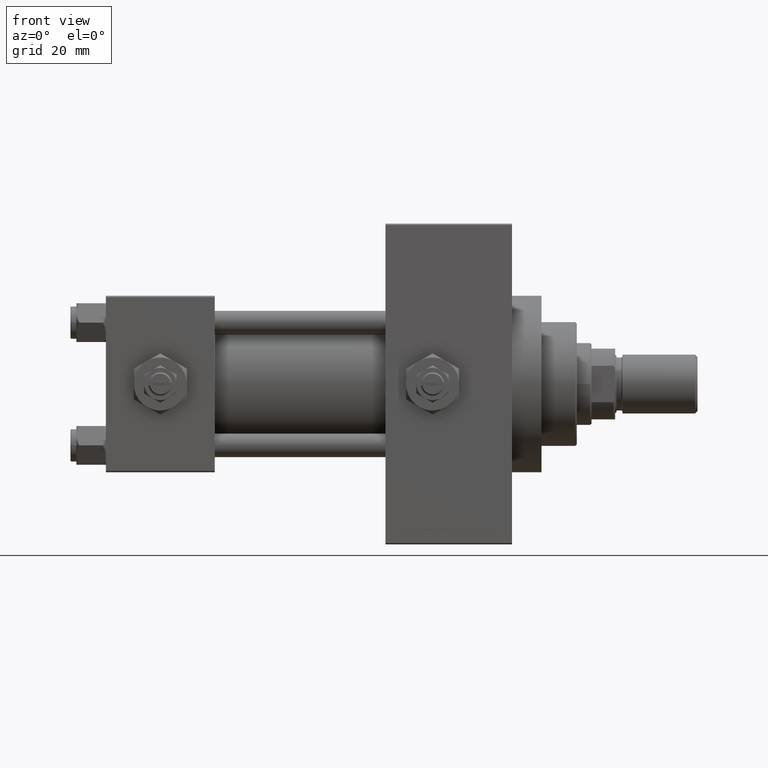
[diagram: clean part render]
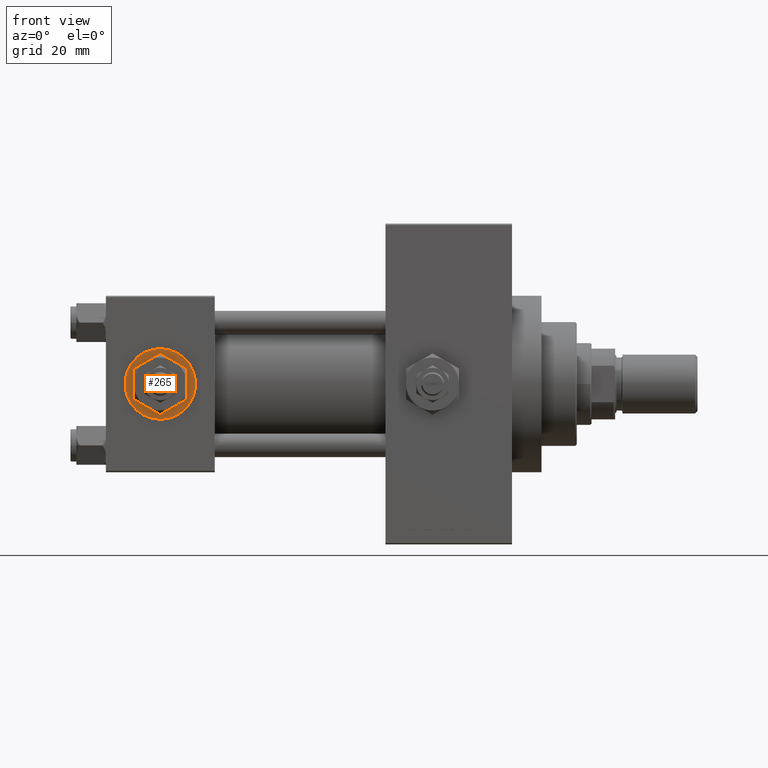
[diagram: same view with one face highlighted and labeled with its STEP entity id]
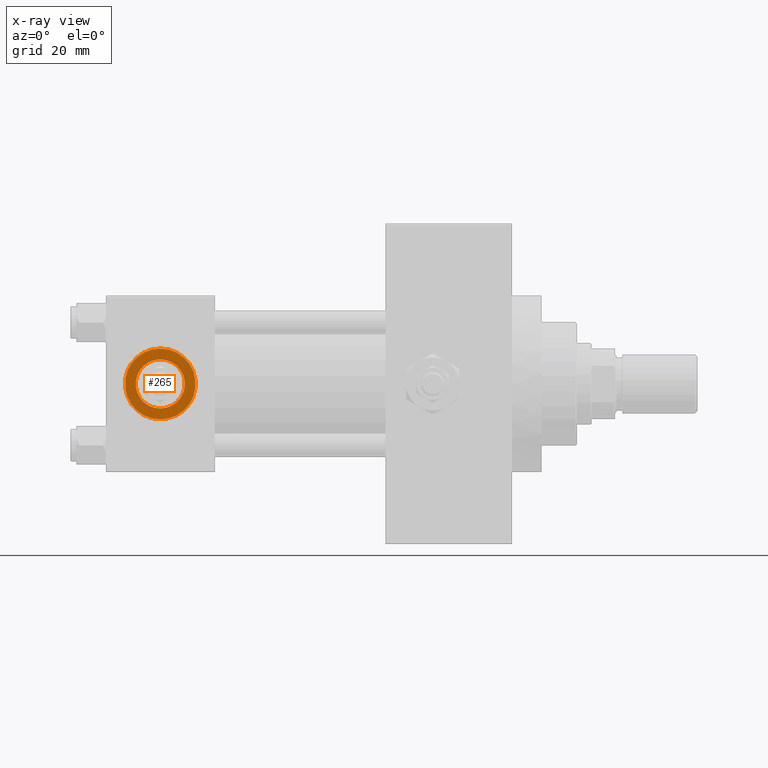
[diagram: x-ray of the same camera — body ghosted, the highlighted face saturated]
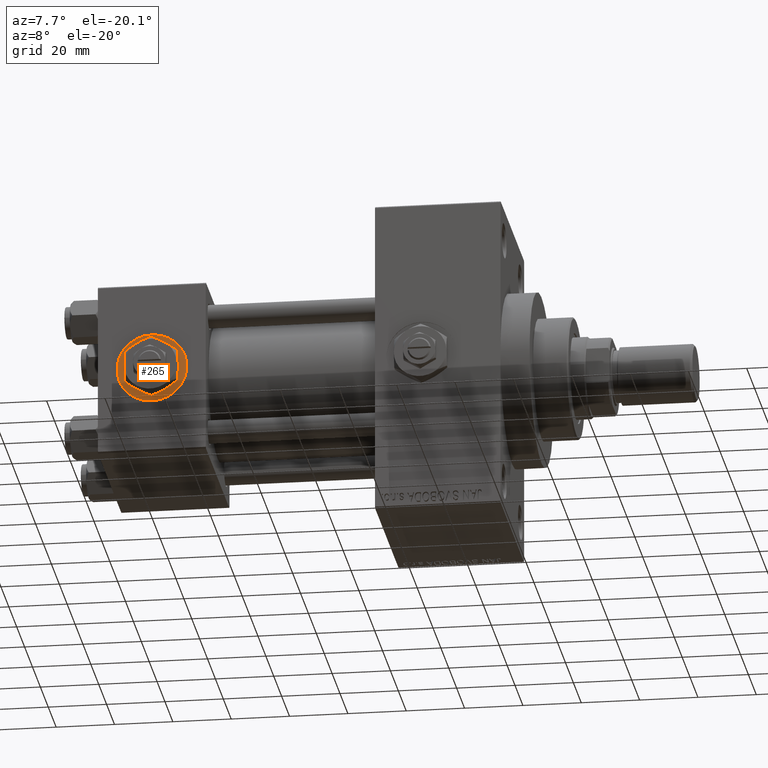
[diagram: same view with one face highlighted and labeled with its STEP entity id]
A machine part, front view. The second image highlights one B-rep face of the part: STEP entity #265.
The next image is the same camera in x-ray: the body ghosted, the highlighted face saturated — about 0% of this face is hidden behind the body in this view.
A second angle (auxiliary view) of the same face is appended — the face is thin or edge-on in the first view.
In plain terms, the highlighted planar face has unit normal (0, -1, -0).
Its self-contained STEP definition (entity closure, byte-faithful):
#265 = ADVANCED_FACE ( 'NONE', ( #400, #42926 ), #15752, .T. ) ;
#400 = FACE_BOUND ( 'NONE', #7706, .T. ) ;
#3880 = EDGE_CURVE ( 'NONE', #7377, #9860, #19026, .T. ) ;
#4525 = CIRCLE ( 'NONE', #6121, 8.330000000000001847 ) ;
#4671 = DIRECTION ( 'NONE',  ( 0.000000000000000000, -1.000000000000000000, -8.673617379884036705E-17 ) ) ;
#6121 = AXIS2_PLACEMENT_3D ( 'NONE', #22438, #49338, #33997 ) ;
#7377 = VERTEX_POINT ( 'NONE', #7978 ) ;
#7706 = EDGE_LOOP ( 'NONE', ( #35182, #15609 ) ) ;
#7978 = CARTESIAN_POINT ( 'NONE',  ( 18.50000000000000000, -29.80000000000000071, -12.00000000000000178 ) ) ;
#9860 = VERTEX_POINT ( 'NONE', #17759 ) ;
#10772 = ORIENTED_EDGE ( 'NONE', *, *, #3880, .T. ) ;
#10853 = VERTEX_POINT ( 'NONE', #46761 ) ;
#11008 = CARTESIAN_POINT ( 'NONE',  ( 18.50000000000000000, -29.80000000000000071, 1.734723475976807403E-17 ) ) ;
#11086 = DIRECTION ( 'NONE',  ( 0.000000000000000000, 0.000000000000000000, -1.000000000000000000 ) ) ;
#12398 = CIRCLE ( 'NONE', #44546, 12.00000000000000178 ) ;
#14460 = VERTEX_POINT ( 'NONE', #46051 ) ;
#14871 = CARTESIAN_POINT ( 'NONE',  ( 18.50000000000000000, -29.80000000000000071, 1.734723475976807403E-17 ) ) ;
#15609 = ORIENTED_EDGE ( 'NONE', *, *, #32049, .F. ) ;
#15659 = DIRECTION ( 'NONE',  ( 0.000000000000000000, 0.000000000000000000, -1.000000000000000000 ) ) ;
#15752 = PLANE ( 'NONE',  #41504 ) ;
#16259 = DIRECTION ( 'NONE',  ( 0.000000000000000000, 8.673617379884036705E-17, -1.000000000000000000 ) ) ;
#17759 = CARTESIAN_POINT ( 'NONE',  ( 18.50000000000000000, -29.80000000000000071, 12.00000000000000178 ) ) ;
#19026 = CIRCLE ( 'NONE', #27064, 12.00000000000000178 ) ;
#19435 = DIRECTION ( 'NONE',  ( 0.000000000000000000, -1.000000000000000000, -8.673617379884036705E-17 ) ) ;
#19679 = CARTESIAN_POINT ( 'NONE',  ( 18.50000000000000000, -29.80000000000000071, 1.734723475976808635E-17 ) ) ;
#22108 = DIRECTION ( 'NONE',  ( 0.000000000000000000, 0.000000000000000000, -1.000000000000000000 ) ) ;
#22438 = CARTESIAN_POINT ( 'NONE',  ( 18.50000000000000000, -29.80000000000000071, 1.734723475976808635E-17 ) ) ;
#27064 = AXIS2_PLACEMENT_3D ( 'NONE', #14871, #45565, #11086 ) ;
#29104 = EDGE_CURVE ( 'NONE', #9860, #7377, #12398, .T. ) ;
#32049 = EDGE_CURVE ( 'NONE', #10853, #14460, #47051, .T. ) ;
#33997 = DIRECTION ( 'NONE',  ( 0.000000000000000000, 0.000000000000000000, -1.000000000000000000 ) ) ;
#35182 = ORIENTED_EDGE ( 'NONE', *, *, #37390, .F. ) ;
#36592 = AXIS2_PLACEMENT_3D ( 'NONE', #19679, #19435, #15659 ) ;
#37390 = EDGE_CURVE ( 'NONE', #14460, #10853, #4525, .T. ) ;
#39136 = CARTESIAN_POINT ( 'NONE',  ( 18.50000000000000000, -29.80000000000000071, 1.734723475976807403E-17 ) ) ;
#41217 = DIRECTION ( 'NONE',  ( 0.000000000000000000, -1.000000000000000000, -8.673617379884036705E-17 ) ) ;
#41504 = AXIS2_PLACEMENT_3D ( 'NONE', #39136, #4671, #16259 ) ;
#42926 = FACE_OUTER_BOUND ( 'NONE', #46390, .T. ) ;
#44546 = AXIS2_PLACEMENT_3D ( 'NONE', #11008, #41217, #22108 ) ;
#45565 = DIRECTION ( 'NONE',  ( 0.000000000000000000, -1.000000000000000000, -8.673617379884036705E-17 ) ) ;
#46051 = CARTESIAN_POINT ( 'NONE',  ( 18.50000000000000000, -29.80000000000000071, -8.330000000000001847 ) ) ;
#46390 = EDGE_LOOP ( 'NONE', ( #10772, #49058 ) ) ;
#46761 = CARTESIAN_POINT ( 'NONE',  ( 18.50000000000000000, -29.80000000000000071, 8.330000000000001847 ) ) ;
#47051 = CIRCLE ( 'NONE', #36592, 8.330000000000001847 ) ;
#49058 = ORIENTED_EDGE ( 'NONE', *, *, #29104, .T. ) ;
#49338 = DIRECTION ( 'NONE',  ( 0.000000000000000000, -1.000000000000000000, -8.673617379884036705E-17 ) ) ;